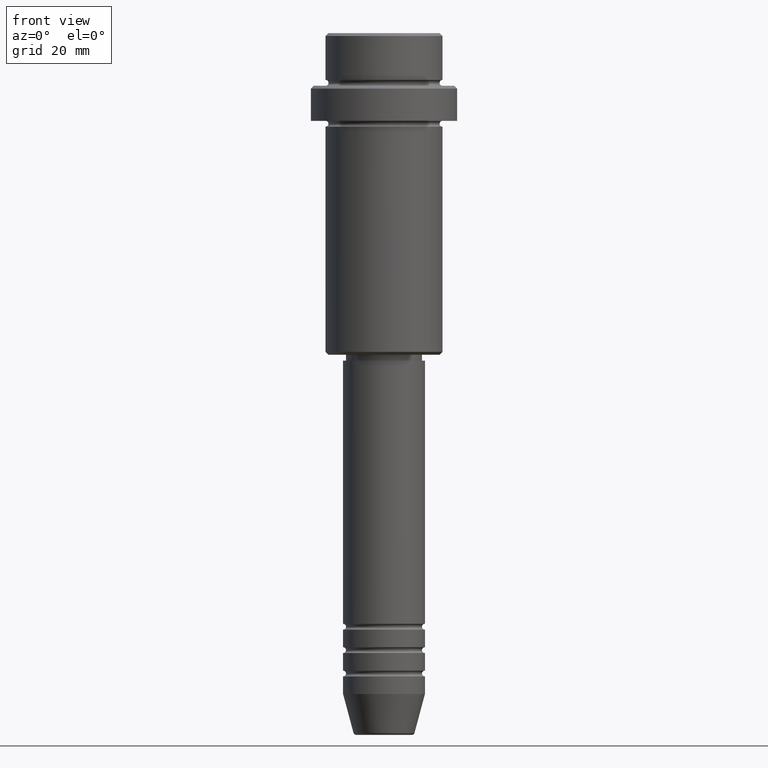
[diagram: clean part render]
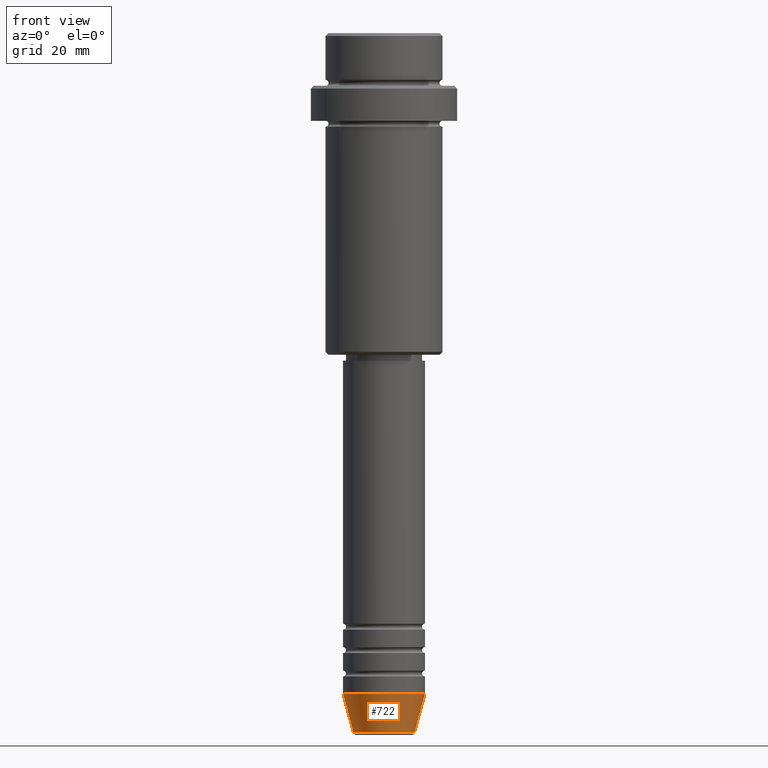
[diagram: same view with one face highlighted and labeled with its STEP entity id]
A machine part, front view. The second image highlights one B-rep face of the part: STEP entity #722.
In plain terms, the highlighted conical surface has half-angle 15 deg.
Its self-contained STEP definition (entity closure, byte-faithful):
#4 = ORIENTED_EDGE ( 'NONE', *, *, #1287, .F. ) ;
#5 = EDGE_CURVE ( 'NONE', #113, #789, #1235, .T. ) ;
#42 = DIRECTION ( 'NONE',  ( 1.000000000000000000, 0.000000000000000000, 0.000000000000000000 ) ) ;
#60 = DIRECTION ( 'NONE',  ( 1.000000000000000000, 0.000000000000000000, 0.000000000000000000 ) ) ;
#113 = VERTEX_POINT ( 'NONE', #187 ) ;
#136 = CONICAL_SURFACE ( 'NONE', #1182, 7.000000000000000000, 0.2617993877991500740 ) ;
#141 = DIRECTION ( 'NONE',  ( -0.2588190451025213501, 3.169619151431772337E-17, 0.9659258262890680902 ) ) ;
#152 = VERTEX_POINT ( 'NONE', #418 ) ;
#180 = AXIS2_PLACEMENT_3D ( 'NONE', #276, #1378, #60 ) ;
#187 = CARTESIAN_POINT ( 'NONE',  ( 5.223655072137196598, 0.000000000000000000, -119.6294095225512422 ) ) ;
#248 = FACE_OUTER_BOUND ( 'NONE', #1313, .T. ) ;
#252 = CARTESIAN_POINT ( 'NONE',  ( 7.000000000000000000, 0.000000000000000000, -113.0000000000000000 ) ) ;
#259 = LINE ( 'NONE', #1105, #407 ) ;
#276 = CARTESIAN_POINT ( 'NONE',  ( 0.000000000000000000, 0.000000000000000000, -113.0000000000000000 ) ) ;
#379 = ORIENTED_EDGE ( 'NONE', *, *, #390, .F. ) ;
#390 = EDGE_CURVE ( 'NONE', #983, #152, #259, .T. ) ;
#391 = DIRECTION ( 'NONE',  ( 0.2588190451025213501, 0.000000000000000000, 0.9659258262890680902 ) ) ;
#407 = VECTOR ( 'NONE', #141, 1000.000000000000000 ) ;
#418 = CARTESIAN_POINT ( 'NONE',  ( -7.000000000000000000, 8.572527594031473190E-16, -113.0000000000000000 ) ) ;
#572 = DIRECTION ( 'NONE',  ( -0.000000000000000000, -0.000000000000000000, 1.000000000000000000 ) ) ;
#624 = EDGE_CURVE ( 'NONE', #983, #113, #814, .T. ) ;
#631 = ORIENTED_EDGE ( 'NONE', *, *, #5, .T. ) ;
#674 = CARTESIAN_POINT ( 'NONE',  ( 0.000000000000000000, 0.000000000000000000, -119.6294095225512422 ) ) ;
#714 = ORIENTED_EDGE ( 'NONE', *, *, #624, .T. ) ;
#722 = ADVANCED_FACE ( 'NONE', ( #248 ), #136, .T. ) ;
#789 = VERTEX_POINT ( 'NONE', #1327 ) ;
#799 = DIRECTION ( 'NONE',  ( -0.000000000000000000, -0.000000000000000000, 1.000000000000000000 ) ) ;
#814 = CIRCLE ( 'NONE', #1297, 5.223655072137196598 ) ;
#983 = VERTEX_POINT ( 'NONE', #1134 ) ;
#1002 = DIRECTION ( 'NONE',  ( 1.000000000000000000, 0.000000000000000000, 0.000000000000000000 ) ) ;
#1011 = CARTESIAN_POINT ( 'NONE',  ( 0.000000000000000000, 0.000000000000000000, -113.0000000000000000 ) ) ;
#1036 = CIRCLE ( 'NONE', #180, 7.000000000000000000 ) ;
#1105 = CARTESIAN_POINT ( 'NONE',  ( -7.000000000000000000, 8.572527594031473190E-16, -113.0000000000000000 ) ) ;
#1134 = CARTESIAN_POINT ( 'NONE',  ( -5.223655072137196598, 7.484830028987063133E-16, -119.6294095225512422 ) ) ;
#1182 = AXIS2_PLACEMENT_3D ( 'NONE', #1011, #799, #42 ) ;
#1235 = LINE ( 'NONE', #252, #1385 ) ;
#1287 = EDGE_CURVE ( 'NONE', #152, #789, #1036, .T. ) ;
#1297 = AXIS2_PLACEMENT_3D ( 'NONE', #674, #572, #1002 ) ;
#1313 = EDGE_LOOP ( 'NONE', ( #379, #714, #631, #4 ) ) ;
#1327 = CARTESIAN_POINT ( 'NONE',  ( 7.000000000000000000, 0.000000000000000000, -113.0000000000000000 ) ) ;
#1378 = DIRECTION ( 'NONE',  ( -0.000000000000000000, -0.000000000000000000, 1.000000000000000000 ) ) ;
#1385 = VECTOR ( 'NONE', #391, 1000.000000000000000 ) ;